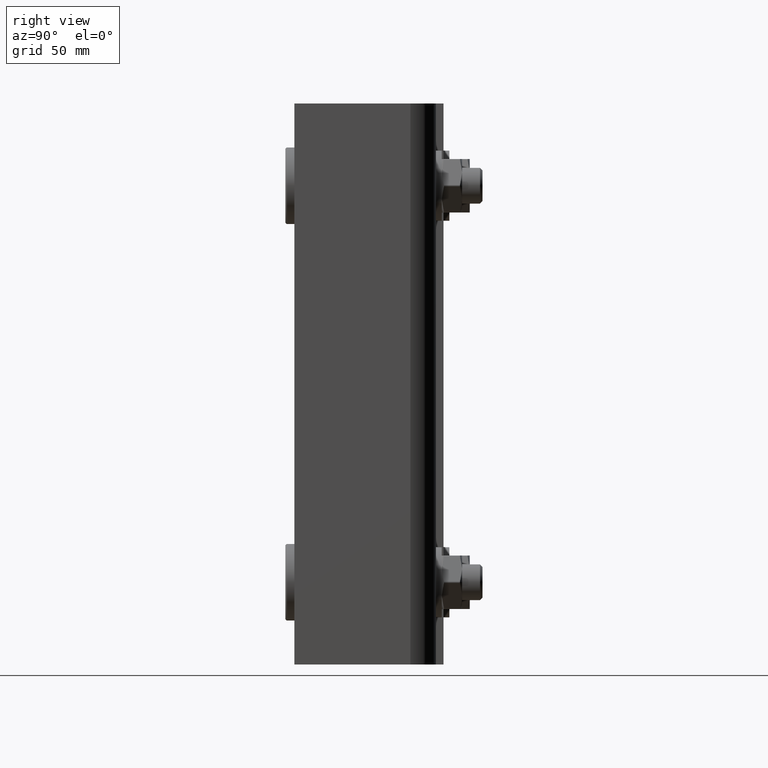
[diagram: clean part render]
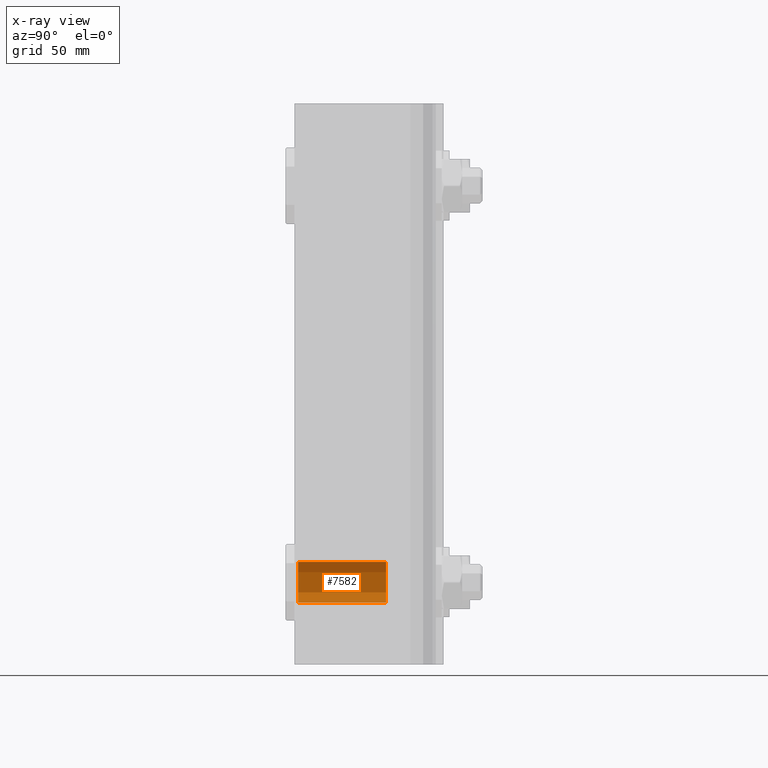
[diagram: x-ray — body ghosted, one internal face saturated and labeled with its STEP entity id]
A machine part, right view, then the same camera in x-ray: the body is ghosted and one INTERNAL B-rep face — a face not visible from any outside direction — is saturated and labeled: STEP entity #7582.
In plain terms, the highlighted cylindrical surface (edge-blend (fillet) strip) has radius 7.95 mm, axis along (0, 1, 0).
Its self-contained STEP definition (entity closure, byte-faithful):
#95 = ORIENTED_EDGE ( 'NONE', *, *, #14885, .F. ) ;
#142 = VERTEX_POINT ( 'NONE', #4396 ) ;
#366 = EDGE_CURVE ( 'NONE', #142, #16795, #12738, .T. ) ;
#1055 = CARTESIAN_POINT ( 'NONE',  ( 9.735942053221462816E-16, -15.00000000000000355, -7.950000000000001954 ) ) ;
#1379 = DIRECTION ( 'NONE',  ( 0.000000000000000000, 0.000000000000000000, 1.000000000000000000 ) ) ;
#1598 = DIRECTION ( 'NONE',  ( -0.000000000000000000, 1.000000000000000000, -0.000000000000000000 ) ) ;
#1896 = FACE_OUTER_BOUND ( 'NONE', #5427, .T. ) ;
#2388 = VECTOR ( 'NONE', #13055, 1000.000000000000000 ) ;
#2697 = CARTESIAN_POINT ( 'NONE',  ( 0.000000000000000000, 19.50000000000000711, 0.000000000000000000 ) ) ;
#3130 = VERTEX_POINT ( 'NONE', #1055 ) ;
#4396 = CARTESIAN_POINT ( 'NONE',  ( 0.000000000000000000, -15.00000000000000355, 7.950000000000001954 ) ) ;
#5143 = CIRCLE ( 'NONE', #11667, 7.950000000000001954 ) ;
#5427 = EDGE_LOOP ( 'NONE', ( #95, #8081, #20319, #13726 ) ) ;
#5762 = CARTESIAN_POINT ( 'NONE',  ( 9.735942053221458872E-16, 20.00000000000000711, -7.950000000000000178 ) ) ;
#6291 = CARTESIAN_POINT ( 'NONE',  ( 0.000000000000000000, 20.00000000000000711, 0.000000000000000000 ) ) ;
#7571 = DIRECTION ( 'NONE',  ( -0.000000000000000000, 1.000000000000000000, -0.000000000000000000 ) ) ;
#7582 = ADVANCED_FACE ( 'NONE', ( #1896 ), #16117, .F. ) ;
#7683 = DIRECTION ( 'NONE',  ( 0.000000000000000000, 0.000000000000000000, -1.000000000000000000 ) ) ;
#7759 = DIRECTION ( 'NONE',  ( 0.000000000000000000, 1.000000000000000000, 0.000000000000000000 ) ) ;
#8081 = ORIENTED_EDGE ( 'NONE', *, *, #10550, .T. ) ;
#8533 = DIRECTION ( 'NONE',  ( -0.000000000000000000, 1.000000000000000000, -0.000000000000000000 ) ) ;
#9985 = LINE ( 'NONE', #5762, #17213 ) ;
#10038 = CARTESIAN_POINT ( 'NONE',  ( 0.000000000000000000, -15.00000000000000355, 0.000000000000000000 ) ) ;
#10516 = CARTESIAN_POINT ( 'NONE',  ( 9.735942053221460844E-16, 19.50000000000000711, -7.950000000000000178 ) ) ;
#10550 = EDGE_CURVE ( 'NONE', #3130, #16048, #9985, .T. ) ;
#10559 = AXIS2_PLACEMENT_3D ( 'NONE', #2697, #7759, #7683 ) ;
#11667 = AXIS2_PLACEMENT_3D ( 'NONE', #10038, #8533, #16563 ) ;
#12518 = CARTESIAN_POINT ( 'NONE',  ( 0.000000000000000000, 19.50000000000000711, 7.950000000000000178 ) ) ;
#12738 = LINE ( 'NONE', #19736, #2388 ) ;
#13055 = DIRECTION ( 'NONE',  ( -0.000000000000000000, 1.000000000000000000, -0.000000000000000000 ) ) ;
#13726 = ORIENTED_EDGE ( 'NONE', *, *, #366, .F. ) ;
#13943 = EDGE_CURVE ( 'NONE', #16048, #16795, #14598, .T. ) ;
#14598 = CIRCLE ( 'NONE', #10559, 7.950000000000000178 ) ;
#14885 = EDGE_CURVE ( 'NONE', #3130, #142, #5143, .T. ) ;
#16048 = VERTEX_POINT ( 'NONE', #10516 ) ;
#16117 = CYLINDRICAL_SURFACE ( 'NONE', #17137, 7.950000000000000178 ) ;
#16563 = DIRECTION ( 'NONE',  ( 0.000000000000000000, 0.000000000000000000, 1.000000000000000000 ) ) ;
#16795 = VERTEX_POINT ( 'NONE', #12518 ) ;
#17137 = AXIS2_PLACEMENT_3D ( 'NONE', #6291, #1598, #1379 ) ;
#17213 = VECTOR ( 'NONE', #7571, 1000.000000000000000 ) ;
#19736 = CARTESIAN_POINT ( 'NONE',  ( 0.000000000000000000, 20.00000000000000711, 7.950000000000000178 ) ) ;
#20319 = ORIENTED_EDGE ( 'NONE', *, *, #13943, .T. ) ;